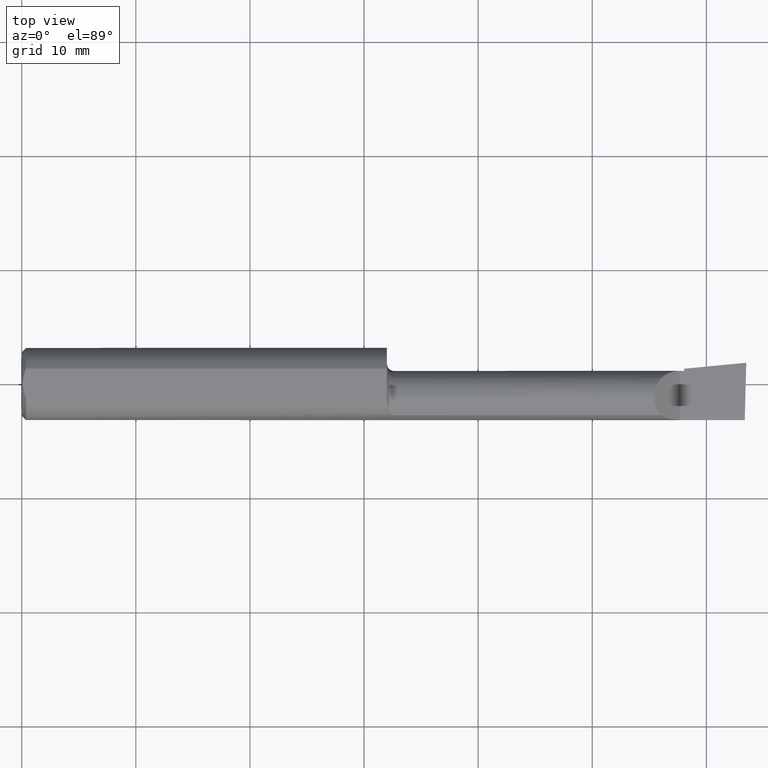
[diagram: clean part render]
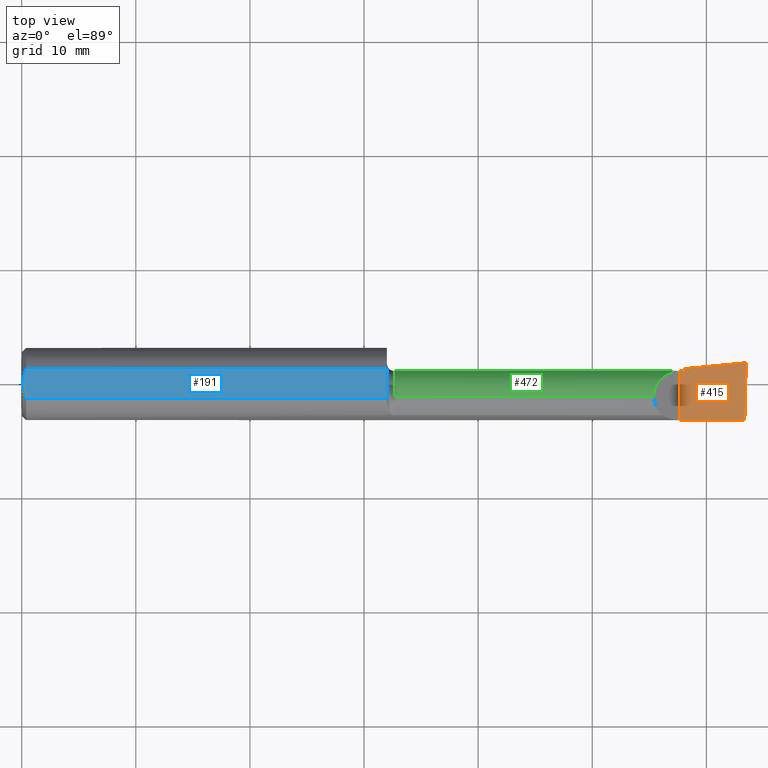
[diagram: same view with three faces highlighted in distinct colors, each labeled with its STEP entity id]
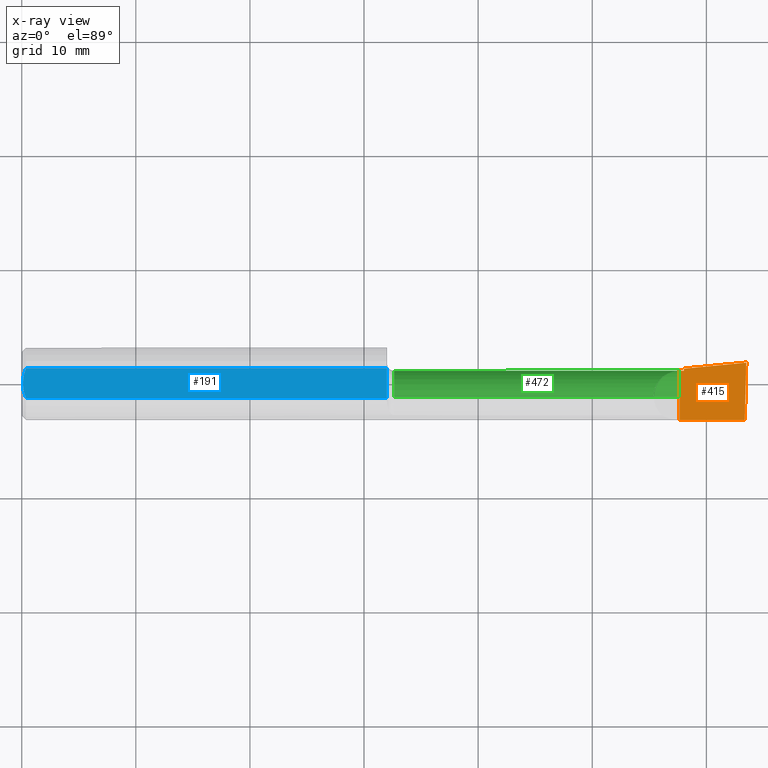
[diagram: x-ray of the same camera — body ghosted, the three highlighted faces saturated]
A machine part, top view with three faces highlighted in distinct colors.
The next image is the same camera in x-ray (body ghosted, the three faces saturated) — at least one of them is partly hidden behind the body in this view.
Their STEP definitions:

[orange] entity #415 — the highlighted planar face has unit normal (-0, 0, -1).
#13 = EDGE_CURVE ( 'NONE', #358, #156, #445, .T. ) ;
#16 = VECTOR ( 'NONE', #574, 39.37007874015748143 ) ;
#47 = CARTESIAN_POINT ( 'NONE',  ( 4.111069666048746882E-31, -0.1248499999999999888, 9.802154982235641300E-16 ) ) ;
#64 = CARTESIAN_POINT ( 'NONE',  ( 2.285000000000000142, 0.04514999999999999569, 9.802154982235649188E-16 ) ) ;
#65 = EDGE_CURVE ( 'NONE', #348, #150, #330, .T. ) ;
#78 = CARTESIAN_POINT ( 'NONE',  ( 2.270000000000000018, -0.2500000000000000555, 2.816687638038912303E-17 ) ) ;
#82 = CARTESIAN_POINT ( 'NONE',  ( 2.285000000000000142, -0.2500000000000000555, 2.187580619199813988E-17 ) ) ;
#150 = VERTEX_POINT ( 'NONE', #64 ) ;
#154 = VECTOR ( 'NONE', #168, 39.37007874015748143 ) ;
#155 = ORIENTED_EDGE ( 'NONE', *, *, #13, .T. ) ;
#156 = VERTEX_POINT ( 'NONE', #293 ) ;
#157 = CARTESIAN_POINT ( 'NONE',  ( 2.491543817870046862, -0.2497785670779703315, -6.474963748791634766E-17 ) ) ;
#168 = DIRECTION ( 'NONE',  ( -1.000000000000000000, -0.0000000000000000000, -0.0000000000000000000 ) ) ;
#190 = LINE ( 'NONE', #47, #154 ) ;
#203 = LINE ( 'NONE', #78, #287 ) ;
#231 = ORIENTED_EDGE ( 'NONE', *, *, #389, .F. ) ;
#237 = CARTESIAN_POINT ( 'NONE',  ( 2.285000000000000142, 0.05244785463753253579, 9.802155642165059035E-16 ) ) ;
#252 = AXIS2_PLACEMENT_3D ( 'NONE', #549, #394, #666 ) ;
#258 = LINE ( 'NONE', #82, #16 ) ;
#273 = PLANE ( 'NONE',  #252 ) ;
#281 = EDGE_LOOP ( 'NONE', ( #231, #155, #642, #645, #566, #603 ) ) ;
#287 = VECTOR ( 'NONE', #352, 39.37007874015748143 ) ;
#290 = VECTOR ( 'NONE', #334, 39.37007874015748143 ) ;
#293 = CARTESIAN_POINT ( 'NONE',  ( 2.500000000000007550, 0.07315000000001690983, 5.243440742839345051E-14 ) ) ;
#301 = CARTESIAN_POINT ( 'NONE',  ( 2.270000000000000018, -0.1248500000000000165, 2.816687638038912303E-17 ) ) ;
#306 = CARTESIAN_POINT ( 'NONE',  ( 2.270000000000000018, 0.04514999999999985691, 2.816687638038912303E-17 ) ) ;
#330 = LINE ( 'NONE', #551, #546 ) ;
#334 = DIRECTION ( 'NONE',  ( 0.02617694830787468258, 0.9996573249755572599, -1.081567693920923293E-17 ) ) ;
#347 = DIRECTION ( 'NONE',  ( 1.000000000000000000, 0.0000000000000000000, 0.0000000000000000000 ) ) ;
#348 = VERTEX_POINT ( 'NONE', #306 ) ;
#352 = DIRECTION ( 'NONE',  ( -0.0000000000000000000, 1.000000000000000000, -0.0000000000000000000 ) ) ;
#358 = VERTEX_POINT ( 'NONE', #730 ) ;
#389 = EDGE_CURVE ( 'NONE', #358, #683, #190, .T. ) ;
#394 = DIRECTION ( 'NONE',  ( -4.194046792260684025E-16, 0.0000000000000000000, -1.000000000000000000 ) ) ;
#415 = ADVANCED_FACE ( 'NONE', ( #435 ), #273, .F. ) ;
#435 = FACE_OUTER_BOUND ( 'NONE', #281, .T. ) ;
#443 = EDGE_CURVE ( 'NONE', #489, #156, #692, .T. ) ;
#445 = LINE ( 'NONE', #157, #290 ) ;
#455 = CARTESIAN_POINT ( 'NONE',  ( 1.283350732061822486, -0.04399999999999999745, 4.419721961086355934E-16 ) ) ;
#489 = VERTEX_POINT ( 'NONE', #237 ) ;
#539 = VECTOR ( 'NONE', #559, 39.37007874015748143 ) ;
#546 = VECTOR ( 'NONE', #347, 39.37007874015748143 ) ;
#549 = CARTESIAN_POINT ( 'NONE',  ( 2.500000000000000000, -0.2500000000000000555, -6.829619984160658046E-17 ) ) ;
#551 = CARTESIAN_POINT ( 'NONE',  ( 4.111069666048746882E-31, 0.04514999999999991243, 9.802154982235641300E-16 ) ) ;
#559 = DIRECTION ( 'NONE',  ( 0.9953961983671787417, 0.09584575252022459191, -4.174738232790345673E-16 ) ) ;
#566 = ORIENTED_EDGE ( 'NONE', *, *, #65, .F. ) ;
#574 = DIRECTION ( 'NONE',  ( 0.0000000000000000000, 1.000000000000000000, 0.0000000000000000000 ) ) ;
#603 = ORIENTED_EDGE ( 'NONE', *, *, #625, .F. ) ;
#621 = EDGE_CURVE ( 'NONE', #150, #489, #258, .T. ) ;
#625 = EDGE_CURVE ( 'NONE', #683, #348, #203, .T. ) ;
#642 = ORIENTED_EDGE ( 'NONE', *, *, #443, .F. ) ;
#645 = ORIENTED_EDGE ( 'NONE', *, *, #621, .F. ) ;
#666 = DIRECTION ( 'NONE',  ( -1.000000000000000000, 0.0000000000000000000, 4.194046792260684025E-16 ) ) ;
#683 = VERTEX_POINT ( 'NONE', #301 ) ;
#692 = LINE ( 'NONE', #455, #539 ) ;
#730 = CARTESIAN_POINT ( 'NONE',  ( 2.494815187529301426, -0.1248500000000000304, -6.610128768667490488E-17 ) ) ;

[blue] entity #191 — the highlighted planar face has unit normal (0, -0, -1).
#4 = VERTEX_POINT ( 'NONE', #612 ) ;
#6 = VECTOR ( 'NONE', #229, 39.37007874015748143 ) ;
#14 = CARTESIAN_POINT ( 'NONE',  ( 0.004000000000000276772, 1.406179932551309785E-17, 0.1138500000000000345 ) ) ;
#20 = CARTESIAN_POINT ( 'NONE',  ( 0.004000000000000247281, 0.008831293378136248484, 0.1138500000000000345 ) ) ;
#29 = CARTESIAN_POINT ( 'NONE',  ( 1.260000000000000231, 0.1748500000000000609, 0.1138500000000000068 ) ) ;
#36 = CARTESIAN_POINT ( 'NONE',  ( 0.008876515511621064711, 0.03469031959364227147, 0.1138500000000000206 ) ) ;
#60 = EDGE_CURVE ( 'NONE', #212, #303, #652, .T. ) ;
#69 = CARTESIAN_POINT ( 'NONE',  ( 0.004000000000000276772, 1.406179932551309785E-17, 0.1138500000000000345 ) ) ;
#70 = CARTESIAN_POINT ( 'NONE',  ( 0.008889541251485983883, -0.03475029298915140868, 0.1138500000000000484 ) ) ;
#85 = B_SPLINE_CURVE_WITH_KNOTS ( 'NONE', 3,
 ( #678, #684, #70, #346, #116, #623 ),
 .UNSPECIFIED., .F., .F.,
 ( 4, 2, 4 ),
 ( 0.0009713770995563918240, 0.001637314107522508649, 0.002303251115488625256 ),
 .UNSPECIFIED. ) ;
#99 = VERTEX_POINT ( 'NONE', #69 ) ;
#113 = CARTESIAN_POINT ( 'NONE',  ( 1.260000000000000453, -0.03710796596384907664, 0.1138500000000000206 ) ) ;
#116 = CARTESIAN_POINT ( 'NONE',  ( 0.004000000000000249883, -0.008832088689467597689, 0.1138500000000000484 ) ) ;
#143 = CARTESIAN_POINT ( 'NONE',  ( 0.01166851468367536074, 0.04312442857252158507, 0.1138500000000000345 ) ) ;
#158 = EDGE_CURVE ( 'NONE', #303, #422, #715, .T. ) ;
#172 = EDGE_LOOP ( 'NONE', ( #635, #512, #487, #668, #569, #267, #521 ) ) ;
#174 = VERTEX_POINT ( 'NONE', #467 ) ;
#191 = ADVANCED_FACE ( 'NONE', ( #700 ), #515, .F. ) ;
#198 = EDGE_CURVE ( 'NONE', #99, #4, #712, .T. ) ;
#212 = VERTEX_POINT ( 'NONE', #256 ) ;
#229 = DIRECTION ( 'NONE',  ( -1.000000000000000000, -0.0000000000000000000, -0.0000000000000000000 ) ) ;
#230 = LINE ( 'NONE', #29, #708 ) ;
#233 = DIRECTION ( 'NONE',  ( 1.000000000000000000, 0.0000000000000000000, 0.0000000000000000000 ) ) ;
#255 = DIRECTION ( 'NONE',  ( 0.0000000000000000000, -1.000000000000000000, 1.464745492742491612E-16 ) ) ;
#256 = CARTESIAN_POINT ( 'NONE',  ( 1.260001800064805000, -0.04399999999999999745, 0.1138500000000000345 ) ) ;
#266 = AXIS2_PLACEMENT_3D ( 'NONE', #295, #407, #575 ) ;
#267 = ORIENTED_EDGE ( 'NONE', *, *, #158, .F. ) ;
#288 = CARTESIAN_POINT ( 'NONE',  ( 1.260000000000000231, -0.03572957074874805877, 0.1138500000000000345 ) ) ;
#295 = CARTESIAN_POINT ( 'NONE',  ( 2.500000000000000000, 0.1748500000000000609, 0.1138500000000000068 ) ) ;
#303 = VERTEX_POINT ( 'NONE', #365 ) ;
#340 = VERTEX_POINT ( 'NONE', #596 ) ;
#341 = CARTESIAN_POINT ( 'NONE',  ( 1.260001123980412752, -0.03986479258532069775, 0.1138500000000000484 ) ) ;
#342 = CARTESIAN_POINT ( 'NONE',  ( 1.260001800064805000, -0.04520694029916791368, 0.1138500000000000206 ) ) ;
#346 = CARTESIAN_POINT ( 'NONE',  ( 0.005037769558486251270, -0.01754148797401016216, 0.1138500000000000206 ) ) ;
#363 = CARTESIAN_POINT ( 'NONE',  ( 0.005053359673950996896, 0.01761291720128072003, 0.1138500000000000484 ) ) ;
#365 = CARTESIAN_POINT ( 'NONE',  ( 1.260000097795984653, -0.05124158467554382895, 0.1138500000000000345 ) ) ;
#400 = CARTESIAN_POINT ( 'NONE',  ( 1.260000097795984653, -0.05124158467554382895, 0.1138500000000000345 ) ) ;
#407 = DIRECTION ( 'NONE',  ( 0.0000000000000000000, -1.464745492742491612E-16, -1.000000000000000000 ) ) ;
#422 = VERTEX_POINT ( 'NONE', #622 ) ;
#453 = CARTESIAN_POINT ( 'NONE',  ( 0.0000000000000000000, 0.05124158467494922820, 0.1138500000000000345 ) ) ;
#467 = CARTESIAN_POINT ( 'NONE',  ( 1.260000000000000231, 0.05124158467494921432, 0.1138500000000000206 ) ) ;
#471 = EDGE_CURVE ( 'NONE', #422, #99, #85, .T. ) ;
#487 = ORIENTED_EDGE ( 'NONE', *, *, #550, .F. ) ;
#500 = CARTESIAN_POINT ( 'NONE',  ( 1.260001800064805000, -0.04399999999999999745, 0.1138500000000000345 ) ) ;
#501 = CARTESIAN_POINT ( 'NONE',  ( 1.260001294887845402, -0.04762079988859416191, 0.1138500000000000484 ) ) ;
#508 = CARTESIAN_POINT ( 'NONE',  ( 1.260000312090655994, -0.05003465832687906123, 0.1138500000000000761 ) ) ;
#511 = CARTESIAN_POINT ( 'NONE',  ( 1.260001800064805222, -0.04262160478489896570, 0.1138500000000000761 ) ) ;
#512 = ORIENTED_EDGE ( 'NONE', *, *, #680, .F. ) ;
#515 = PLANE ( 'NONE',  #266 ) ;
#519 = EDGE_CURVE ( 'NONE', #340, #212, #541, .T. ) ;
#521 = ORIENTED_EDGE ( 'NONE', *, *, #60, .F. ) ;
#525 = CARTESIAN_POINT ( 'NONE',  ( 0.01499999999999999424, 0.05124158467494922820, 0.1138500000000000345 ) ) ;
#541 = B_SPLINE_CURVE_WITH_KNOTS ( 'NONE', 3,
 ( #288, #113, #341, #511, #500 ),
 .UNSPECIFIED., .F., .F.,
 ( 4, 1, 4 ),
 ( 0.0009734136918183833006, 0.001078393000640055256, 0.001183372309461727320 ),
 .UNSPECIFIED. ) ;
#550 = EDGE_CURVE ( 'NONE', #4, #174, #675, .T. ) ;
#569 = ORIENTED_EDGE ( 'NONE', *, *, #471, .F. ) ;
#575 = DIRECTION ( 'NONE',  ( 0.0000000000000000000, 1.000000000000000000, -1.464745492742491612E-16 ) ) ;
#596 = CARTESIAN_POINT ( 'NONE',  ( 1.260000000000000231, -0.03572957074874805877, 0.1138500000000000345 ) ) ;
#612 = CARTESIAN_POINT ( 'NONE',  ( 0.01499999999999999424, 0.05124158467494922820, 0.1138500000000000345 ) ) ;
#622 = CARTESIAN_POINT ( 'NONE',  ( 0.01499999999999998730, -0.05124158467494919350, 0.1138500000000000345 ) ) ;
#623 = CARTESIAN_POINT ( 'NONE',  ( 0.004000000000000276772, 1.406179932551309785E-17, 0.1138500000000000345 ) ) ;
#627 = CARTESIAN_POINT ( 'NONE',  ( 1.260001800064805000, -0.04399999999999999745, 0.1138500000000000345 ) ) ;
#635 = ORIENTED_EDGE ( 'NONE', *, *, #519, .F. ) ;
#636 = VECTOR ( 'NONE', #233, 39.37007874015748143 ) ;
#652 = B_SPLINE_CURVE_WITH_KNOTS ( 'NONE', 3,
 ( #627, #342, #501, #508, #400 ),
 .UNSPECIFIED., .F., .F.,
 ( 4, 1, 4 ),
 ( 0.001183372309461727320, 0.001275293521177762665, 0.001367214732893798010 ),
 .UNSPECIFIED. ) ;
#668 = ORIENTED_EDGE ( 'NONE', *, *, #198, .F. ) ;
#675 = LINE ( 'NONE', #453, #636 ) ;
#678 = CARTESIAN_POINT ( 'NONE',  ( 0.01499999999999998730, -0.05124158467494919350, 0.1138500000000000345 ) ) ;
#679 = CARTESIAN_POINT ( 'NONE',  ( 0.0000000000000000000, -0.05124158467494919350, 0.1138500000000000345 ) ) ;
#680 = EDGE_CURVE ( 'NONE', #174, #340, #230, .T. ) ;
#684 = CARTESIAN_POINT ( 'NONE',  ( 0.01168016970778672399, -0.04315282601121774725, 0.1138500000000000206 ) ) ;
#700 = FACE_OUTER_BOUND ( 'NONE', #172, .T. ) ;
#708 = VECTOR ( 'NONE', #255, 39.37007874015748143 ) ;
#712 = B_SPLINE_CURVE_WITH_KNOTS ( 'NONE', 3,
 ( #14, #20, #363, #36, #143, #525 ),
 .UNSPECIFIED., .F., .F.,
 ( 4, 2, 4 ),
 ( 0.002303251115488625256, 0.002969128157203606601, 0.003635005198918587511 ),
 .UNSPECIFIED. ) ;
#715 = LINE ( 'NONE', #679, #6 ) ;

[green] entity #472 — the highlighted cylindrical surface (edge-blend (fillet) strip) has radius 2.2644 mm, axis along (-1, -0, -0).
#10 = EDGE_CURVE ( 'NONE', #441, #703, #530, .T. ) ;
#17 = CARTESIAN_POINT ( 'NONE',  ( 2.180849999999999511, -0.04399999999999999745, 0.08914999999999992375 ) ) ;
#62 = CYLINDRICAL_SURFACE ( 'NONE', #438, 0.08914999999999992375 ) ;
#64 = CARTESIAN_POINT ( 'NONE',  ( 2.285000000000000142, 0.04514999999999999569, 9.802154982235649188E-16 ) ) ;
#65 = EDGE_CURVE ( 'NONE', #348, #150, #330, .T. ) ;
#76 = DIRECTION ( 'NONE',  ( 0.0000000000000000000, 0.0000000000000000000, 1.000000000000000000 ) ) ;
#80 = CARTESIAN_POINT ( 'NONE',  ( 1.285000000000000142, -0.04399999999999997663, -0.08914999999999986824 ) ) ;
#81 = EDGE_LOOP ( 'NONE', ( #709, #166, #182, #558, #554, #578 ) ) ;
#110 = EDGE_CURVE ( 'NONE', #150, #441, #388, .T. ) ;
#132 = CARTESIAN_POINT ( 'NONE',  ( 1.285000000000000142, -0.04399999999999999745, 0.0000000000000000000 ) ) ;
#149 = CIRCLE ( 'NONE', #399, 0.08914999999999986824 ) ;
#150 = VERTEX_POINT ( 'NONE', #64 ) ;
#161 = CARTESIAN_POINT ( 'NONE',  ( 0.0000000000000000000, -0.04399999999999998357, -0.08914999999999992375 ) ) ;
#166 = ORIENTED_EDGE ( 'NONE', *, *, #10, .T. ) ;
#177 = DIRECTION ( 'NONE',  ( 0.0000000000000000000, 0.0000000000000000000, 1.000000000000000000 ) ) ;
#178 = CARTESIAN_POINT ( 'NONE',  ( 2.285000000000000142, -0.04399999999999999745, -0.08914999999999999314 ) ) ;
#182 = ORIENTED_EDGE ( 'NONE', *, *, #583, .F. ) ;
#226 = EDGE_CURVE ( 'NONE', #728, #459, #403, .T. ) ;
#244 = CARTESIAN_POINT ( 'NONE',  ( 2.270000000000000018, 0.04514999999999985691, 2.816687638038912303E-17 ) ) ;
#274 = DIRECTION ( 'NONE',  ( -1.000000000000000000, -0.0000000000000000000, -0.0000000000000000000 ) ) ;
#280 = VECTOR ( 'NONE', #599, 39.37007874015748143 ) ;
#282 = DIRECTION ( 'NONE',  ( -1.000000000000000000, -0.0000000000000000000, -0.0000000000000000000 ) ) ;
#306 = CARTESIAN_POINT ( 'NONE',  ( 2.270000000000000018, 0.04514999999999985691, 2.816687638038912303E-17 ) ) ;
#330 = LINE ( 'NONE', #551, #546 ) ;
#338 = DIRECTION ( 'NONE',  ( -1.000000000000000000, -0.0000000000000000000, -0.0000000000000000000 ) ) ;
#347 = DIRECTION ( 'NONE',  ( 1.000000000000000000, 0.0000000000000000000, 0.0000000000000000000 ) ) ;
#348 = VERTEX_POINT ( 'NONE', #306 ) ;
#354 =( BOUNDED_CURVE ( )  B_SPLINE_CURVE ( 3, ( #17, #524, #586, #244 ),
 .UNSPECIFIED., .F., .T. ) 
 B_SPLINE_CURVE_WITH_KNOTS ( ( 4, 4 ),
 ( 0.0000000000000000000, 1.570796326794896558 ),
 .UNSPECIFIED. ) 
 CURVE ( )  GEOMETRIC_REPRESENTATION_ITEM ( )  RATIONAL_B_SPLINE_CURVE ( ( 1.000000000000000000, 0.8047378541243649375, 0.8047378541243649375, 1.000000000000000000 ) ) 
 REPRESENTATION_ITEM ( '' )  );
#371 = FACE_OUTER_BOUND ( 'NONE', #81, .T. ) ;
#388 = CIRCLE ( 'NONE', #397, 0.08914999999999999314 ) ;
#397 = AXIS2_PLACEMENT_3D ( 'NONE', #563, #282, #177 ) ;
#399 = AXIS2_PLACEMENT_3D ( 'NONE', #132, #694, #76 ) ;
#403 = LINE ( 'NONE', #534, #280 ) ;
#420 = CARTESIAN_POINT ( 'NONE',  ( 2.180849999999999511, -0.04399999999999999745, 0.08914999999999992375 ) ) ;
#438 = AXIS2_PLACEMENT_3D ( 'NONE', #462, #338, #562 ) ;
#441 = VERTEX_POINT ( 'NONE', #178 ) ;
#459 = VERTEX_POINT ( 'NONE', #460 ) ;
#460 = CARTESIAN_POINT ( 'NONE',  ( 1.285000000000000142, -0.04399999999999999745, 0.08914999999999986824 ) ) ;
#462 = CARTESIAN_POINT ( 'NONE',  ( 0.0000000000000000000, -0.04399999999999999745, 0.0000000000000000000 ) ) ;
#472 = ADVANCED_FACE ( 'NONE', ( #371 ), #62, .T. ) ;
#524 = CARTESIAN_POINT ( 'NONE',  ( 2.180849999999999067, 0.008222860914438539018, 0.08914999999999993763 ) ) ;
#530 = LINE ( 'NONE', #161, #633 ) ;
#534 = CARTESIAN_POINT ( 'NONE',  ( 0.0000000000000000000, -0.04399999999999999745, 0.08914999999999992375 ) ) ;
#546 = VECTOR ( 'NONE', #347, 39.37007874015748143 ) ;
#551 = CARTESIAN_POINT ( 'NONE',  ( 4.111069666048746882E-31, 0.04514999999999991243, 9.802154982235641300E-16 ) ) ;
#554 = ORIENTED_EDGE ( 'NONE', *, *, #631, .T. ) ;
#558 = ORIENTED_EDGE ( 'NONE', *, *, #226, .F. ) ;
#562 = DIRECTION ( 'NONE',  ( 0.0000000000000000000, 0.0000000000000000000, 1.000000000000000000 ) ) ;
#563 = CARTESIAN_POINT ( 'NONE',  ( 2.285000000000000142, -0.04399999999999999745, 0.0000000000000000000 ) ) ;
#578 = ORIENTED_EDGE ( 'NONE', *, *, #65, .T. ) ;
#583 = EDGE_CURVE ( 'NONE', #459, #703, #149, .T. ) ;
#586 = CARTESIAN_POINT ( 'NONE',  ( 2.217777139085561622, 0.04514999999999992630, 0.05222286091443855555 ) ) ;
#599 = DIRECTION ( 'NONE',  ( -1.000000000000000000, -0.0000000000000000000, -0.0000000000000000000 ) ) ;
#631 = EDGE_CURVE ( 'NONE', #728, #348, #354, .T. ) ;
#633 = VECTOR ( 'NONE', #274, 39.37007874015748143 ) ;
#694 = DIRECTION ( 'NONE',  ( -1.000000000000000000, -0.0000000000000000000, -0.0000000000000000000 ) ) ;
#703 = VERTEX_POINT ( 'NONE', #80 ) ;
#709 = ORIENTED_EDGE ( 'NONE', *, *, #110, .T. ) ;
#728 = VERTEX_POINT ( 'NONE', #420 ) ;